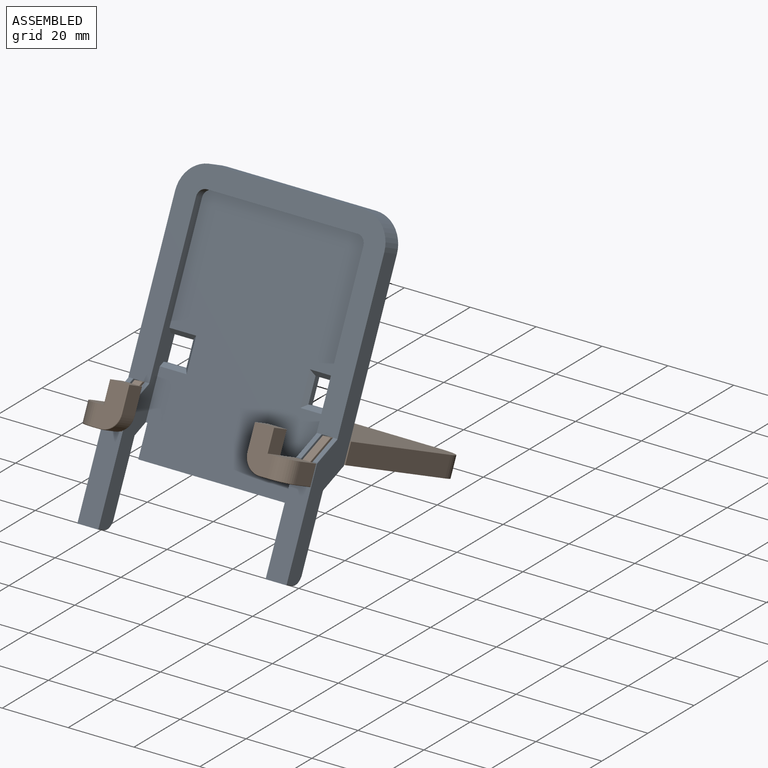
[diagram: assembled view]
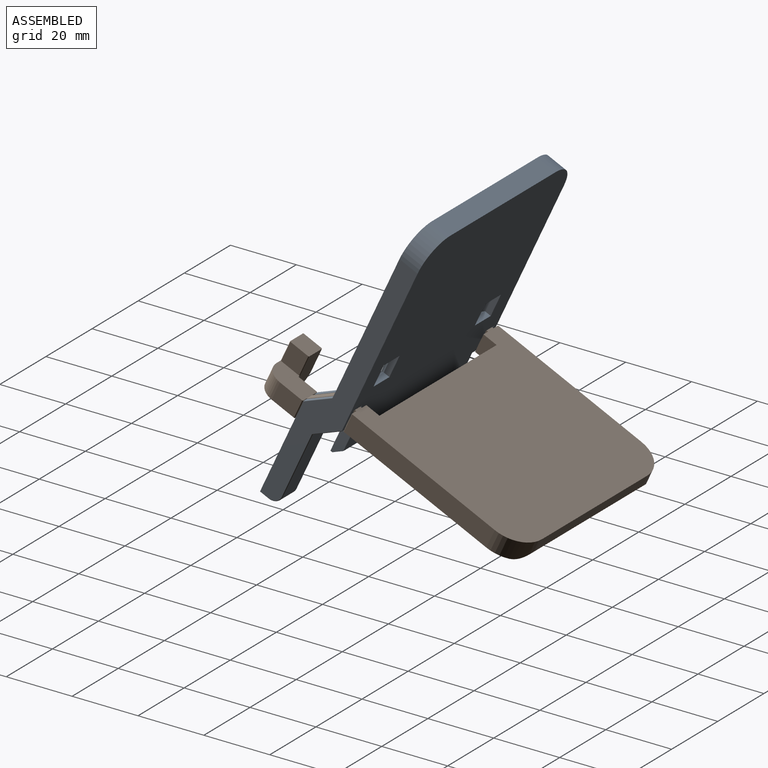
[diagram: assembled view, second angle]
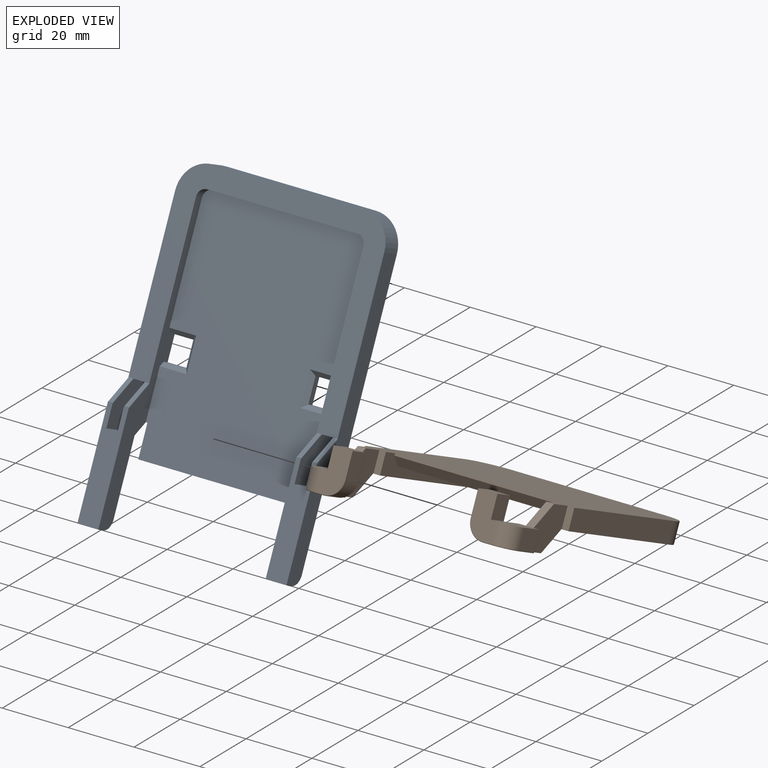
[diagram: exploded view]
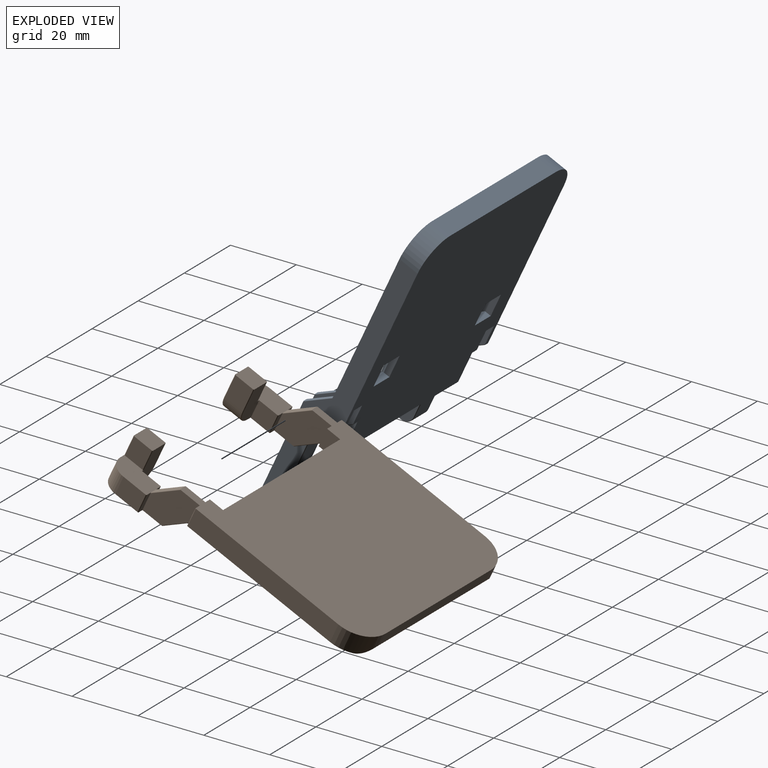
[diagram: exploded view, second angle]
ASSEMBLY  parts=2 mates=2
PART A: 79 faces, bbox 63.5x95.2x13 mm
  f0: plane 73.53x63.5mm, normal (0,0,-1), area 4351mm2, adj f6,f8,f12,f16,f17,f21,f22,f23
  f1: plane 69.72x50.8mm, normal (0,0,1), area 3368.6mm2, adj f2,f3,f4,f8,f12,f23,f24,f25
  f2: plane 49.78x0.64mm, normal (0,-1,0), area 31.6mm2, adj f1,f64,f65,f66
  f3: cylinder r=2.54mm len=2.88mm, axis (0,0,-1), area 11.5mm2, adj f1,f13,f23,f25
  f4: cylinder r=2.54mm len=2.88mm, axis (0,0,1), area 11.5mm2, adj f1,f13,f24,f25
  f5: plane 31.46x6.35mm, normal (0,0,1), area 176.9mm2, adj f7,f14,f19,f22,f23,f31,f32,f33
  f6: plane 6.66x6.66mm, normal (0,-0.71,-0.71), area 10mm2, adj f0,f15,f44,f50
  f7: plane 6.65x6.65mm, normal (0,0.71,0.71), area 10mm2, adj f5,f13,f52,f60
  f8: plane 6.86x6.86mm, normal (0,-0.71,-0.71), area 14.2mm2, adj f0,f1,f20,f24,f38,f54,f66
  f9: plane 6.65x6.65mm, normal (0,0.71,0.71), area 10mm2, adj f10,f13,f56,f59
  f10: plane 31.46x6.35mm, normal (0,0,1), area 176.9mm2, adj f9,f11,f18,f21,f24,f26,f27,f29
  f11: plane 5.95x2.87mm, normal (0,-1,0), area 17.1mm2, adj f10,f35,f36,f46
  f12: plane 6.86x6.86mm, normal (0,-0.71,-0.71), area 14.2mm2, adj f0,f1,f15,f23,f41,f51,f65
  f13: plane 63.5x57.13mm, normal (0,0,1), area 1013.4mm2, adj f3,f4,f7,f9,f14,f17,f18,f21
  f14: plane 6.65x6.65mm, normal (0,0.71,0.71), area 10mm2, adj f5,f13,f53,f58
  f15: plane 21.63x5.95mm, normal (0,0,-1), area 128.7mm2, adj f6,f12,f31,f34,f41,f45
  f16: plane 6.66x6.66mm, normal (0,-0.71,-0.71), area 10mm2, adj f0,f20,f48,f55
  f17: plane 45.72x6.06mm, normal (0,1,0), area 276.8mm2, adj f0,f13,f62,f63
  f18: plane 6.65x6.65mm, normal (0,0.71,0.71), area 10mm2, adj f10,f13,f57,f61
  f19: plane 5.95x2.87mm, normal (0,-1,0), area 17.1mm2, adj f5,f34,f39,f42
  f20: plane 21.63x5.95mm, normal (0,0,-1), area 128.7mm2, adj f8,f16,f29,f35,f38,f49
  f21: plane 85.86x12.7mm, normal (1,0,0), area 553.1mm2, adj f0,f10,f13,f46,f47,f48,f49,f61
  f22: plane 85.86x12.7mm, normal (-1,0,0), area 553.1mm2, adj f0,f5,f13,f42,f43,f44,f45,f60
  f23: plane 85.86x12.7mm, normal (1,0,0), area 401.7mm2, adj f0,f1,f3,f5,f12,f13,f39,f40
  f24: plane 85.86x12.7mm, normal (-1,0,0), area 401.7mm2, adj f0,f1,f4,f8,f10,f13,f36,f37
  f25: plane 45.72x2.88mm, normal (0,-1,0), area 131.7mm2, adj f1,f3,f4,f13
  f26: plane 13.3x12.7mm, normal (1,0,0), area 120.8mm2, adj f0,f10,f28,f29,f54,f56
  f27: plane 13.3x12.7mm, normal (-1,0,0), area 120.8mm2, adj f0,f10,f28,f29,f55,f57
  f28: plane 6.06x3.83mm, normal (0,-1,0), area 20.8mm2, adj f0,f13,f26,f27,f56,f57
  f29: plane 6.05x3.83mm, normal (0,1,0), area 20.8mm2, adj f10,f20,f26,f27,f54,f55
  f30: plane 6.06x3.83mm, normal (0,-1,0), area 20.8mm2, adj f0,f13,f32,f33,f52,f53
  f31: plane 6.05x3.83mm, normal (0,1,0), area 20.8mm2, adj f5,f15,f32,f33,f50,f51
  f32: plane 13.3x12.7mm, normal (1,0,0), area 120.8mm2, adj f0,f5,f30,f31,f50,f52
  f33: plane 13.3x12.7mm, normal (-1,0,0), area 120.8mm2, adj f0,f5,f30,f31,f51,f53
  f34: cylinder r=3.17mm len=5.95mm, axis (-1,0,0), area 29.7mm2, adj f15,f19,f40,f43
  f35: cylinder r=3.17mm len=5.95mm, axis (-1,0,0), area 29.7mm2, adj f11,f20,f37,f47
  f36: cylinder r=0.2mm len=2.87mm, axis (0,0,1), area 0.9mm2, adj f10,f11,f24,f37
  f37: torus R=2.98mm, axis (1,0,0), area 1.5mm2, adj f24,f35,f36,f38
  f38: cylinder r=0.2mm len=21.63mm, axis (0,1,0), area 6.8mm2, adj f8,f20,f24,f37
  f39: cylinder r=0.2mm len=2.87mm, axis (0,0,-1), area 0.9mm2, adj f5,f19,f23,f40
  f40: torus R=2.98mm, axis (1,0,0), area 1.5mm2, adj f23,f34,f39,f41
  f41: cylinder r=0.2mm len=21.63mm, axis (0,-1,0), area 6.8mm2, adj f12,f15,f23,f40
  f42: cylinder r=0.2mm len=2.87mm, axis (0,0,-1), area 0.9mm2, adj f5,f19,f22,f43
  f43: torus R=2.98mm, axis (1,0,0), area 1.5mm2, adj f22,f34,f42,f45
  f44: cylinder r=0.2mm len=7mm, axis (0,0.71,-0.71), area 3mm2, adj f0,f6,f22,f45
  f45: cylinder r=0.2mm len=21.71mm, axis (0,1,0), area 6.8mm2, adj f15,f22,f43,f44
  f46: cylinder r=0.2mm len=2.87mm, axis (0,0,1), area 0.9mm2, adj f10,f11,f21,f47
  f47: torus R=2.98mm, axis (1,0,0), area 1.5mm2, adj f21,f35,f46,f49
  f48: cylinder r=0.2mm len=7mm, axis (0,-0.71,0.71), area 3mm2, adj f0,f16,f21,f49
  f49: cylinder r=0.2mm len=21.71mm, axis (0,-1,0), area 6.8mm2, adj f20,f21,f47,f48
  f50: cylinder r=0.2mm len=7.08mm, axis (0,-0.71,0.71), area 3mm2, adj f0,f6,f31,f32
  f51: cylinder r=0.2mm len=7.08mm, axis (0,0.71,-0.71), area 3mm2, adj f0,f12,f31,f33
  f52: cylinder r=0.2mm len=7.07mm, axis (0,0.71,-0.71), area 3mm2, adj f5,f7,f30,f32
  f53: cylinder r=0.2mm len=7.07mm, axis (0,-0.71,0.71), area 3mm2, adj f5,f14,f30,f33
  f54: cylinder r=0.2mm len=7.08mm, axis (0,-0.71,0.71), area 3mm2, adj f0,f8,f26,f29
  f55: cylinder r=0.2mm len=7.08mm, axis (0,0.71,-0.71), area 3mm2, adj f0,f16,f27,f29
  f56: cylinder r=0.2mm len=7.07mm, axis (0,0.71,-0.71), area 3mm2, adj f9,f10,f26,f28
  f57: cylinder r=0.2mm len=7.07mm, axis (0,-0.71,0.71), area 3mm2, adj f10,f18,f27,f28
  f58: cylinder r=0.2mm len=6.93mm, axis (0,0.71,-0.71), area 3mm2, adj f5,f13,f14,f23
  f59: cylinder r=0.2mm len=6.93mm, axis (0,-0.71,0.71), area 3mm2, adj f9,f10,f13,f24
  f60: cylinder r=0.2mm len=6.93mm, axis (0,-0.71,0.71), area 3mm2, adj f5,f7,f13,f22
  f61: cylinder r=0.2mm len=6.93mm, axis (0,0.71,-0.71), area 3mm2, adj f10,f13,f18,f21
  f62: cylinder r=8.89mm len=8.89mm, axis (0,0,1), area 84.6mm2, adj f0,f13,f17,f22
  f63: cylinder r=8.89mm len=8.89mm, axis (0,0,-1), area 84.6mm2, adj f0,f13,f17,f21
  f64: plane 49.78x2.54mm, normal (0,-0.71,-0.71), area 178.8mm2, adj f0,f2,f65,f66
  f65: plane 12.58x3.18mm, normal (-1,0,0), area 31.7mm2, adj f0,f1,f2,f12,f64
  f66: plane 12.58x3.18mm, normal (1,0,0), area 31.7mm2, adj f0,f1,f2,f8,f64
  f67: plane 6.86x1.91mm, normal (0,1,0), area 13.1mm2, adj f0,f24,f69,f73
  f68: plane 6.86x1.91mm, normal (0,-1,0), area 13.1mm2, adj f0,f24,f69,f75
  f69: plane 7.37x1.91mm, normal (1,0,0), area 14mm2, adj f0,f67,f68,f74
  f70: plane 6.86x1.91mm, normal (0,1,0), area 13.1mm2, adj f0,f23,f72,f76
  f71: plane 6.86x1.91mm, normal (0,-1,0), area 13.1mm2, adj f0,f23,f72,f77
  f72: plane 7.37x1.91mm, normal (-1,0,0), area 14mm2, adj f0,f70,f71,f78
  f73: plane 8.13x1.27mm, normal (0,0.71,0.71), area 13.5mm2, adj f1,f24,f67,f74
  f74: plane 9.91x1.27mm, normal (0.71,0,0.71), area 15.5mm2, adj f1,f69,f73,f75
  f75: plane 8.13x1.27mm, normal (0,-0.71,0.71), area 13.5mm2, adj f1,f24,f68,f74
  f76: plane 8.13x1.27mm, normal (0,0.71,0.71), area 13.5mm2, adj f1,f23,f70,f78
  f77: plane 8.13x1.27mm, normal (0,-0.71,0.71), area 13.5mm2, adj f1,f23,f71,f78
  f78: plane 9.91x1.27mm, normal (-0.71,0,0.71), area 15.5mm2, adj f1,f72,f76,f77
PART B: 88 faces, bbox 64.4x83.3x13.3 mm
  f0: plane 47.96x6.05mm, normal (-1,0,0), area 154.8mm2, adj f3,f4,f13,f38,f85,f86,f87
  f1: plane 47.96x6.05mm, normal (1,0,0), area 154.8mm2, adj f2,f4,f13,f34,f85,f86,f87
  f2: cylinder r=2.54mm len=2.87mm, axis (0,0,-1), area 11.5mm2, adj f1,f4,f29,f85
  f3: cylinder r=2.54mm len=2.87mm, axis (0,0,1), area 11.5mm2, adj f0,f4,f29,f85
  f4: plane 63.5x53.82mm, normal (0,0,1), area 847.2mm2, adj f0,f1,f2,f3,f6,f7,f12,f17
  f5: plane 45.72x3.02mm, normal (0,-1,0), area 138.2mm2, adj f6,f7,f13,f84
  f6: cylinder r=8.89mm len=8.89mm, axis (0,0,-1), area 75.7mm2, adj f4,f5,f13,f24,f84
  f7: cylinder r=8.89mm len=8.89mm, axis (0,0,1), area 75.7mm2, adj f4,f5,f13,f23,f84
  f8: plane 12.5x6.15mm, normal (0,-1,0), area 67.1mm2, adj f21,f25,f30,f62,f63,f64,f82
  f9: plane 12.5x7.42mm, normal (0,1,0), area 74.5mm2, adj f21,f25,f49,f56,f57,f58,f83
  f10: plane 6.35x5.84mm, normal (0,0,-1), area 37.1mm2, adj f20,f22,f27,f33,f50,f65,f80,f81
  f11: plane 19.23x7.5mm, normal (0,0,1), area 95.3mm2, adj f12,f31,f35,f36,f43,f44,f47,f52
  f12: plane 6.66x6.66mm, normal (0,-0.71,0.71), area 18.9mm2, adj f4,f11,f68,f69
  f13: plane 63.58x63.58mm, normal (0,0,-1), area 3384.6mm2, adj f0,f1,f5,f6,f7,f14,f18,f23
  f14: plane 6.65x6.65mm, normal (0,0.71,-0.71), area 18.9mm2, adj f13,f19,f70,f71
  f15: plane 7.42x5.86mm, normal (1,0,0), area 43.4mm2, adj f25,f49,f59,f61
  f16: plane 7.42x5.86mm, normal (-1,0,0), area 43.4mm2, adj f19,f48,f53,f55
  f17: plane 6.66x6.66mm, normal (0,-0.71,0.71), area 18.9mm2, adj f4,f26,f73,f75
  f18: plane 6.65x6.65mm, normal (0,0.71,-0.71), area 18.9mm2, adj f13,f25,f72,f74
  f19: plane 12.7x7.06mm, normal (0,0,-1), area 78.3mm2, adj f14,f16,f20,f22,f27,f31,f35,f44
  f20: plane 12.5x6.15mm, normal (0,-1,0), area 67.1mm2, adj f10,f19,f31,f65,f66,f67,f80
  f21: plane 6.35x5.84mm, normal (0,0,-1), area 37.1mm2, adj f8,f9,f28,f32,f56,f62,f82,f83
  f22: plane 12.5x7.42mm, normal (0,1,0), area 74.5mm2, adj f10,f19,f48,f50,f51,f52,f81
  f23: plane 47.76x6.05mm, normal (1,0,0), area 288.7mm2, adj f4,f7,f13,f79
  f24: plane 47.76x6.05mm, normal (-1,0,0), area 288.7mm2, adj f4,f6,f13,f78
  f25: plane 12.7x7.06mm, normal (0,0,-1), area 78.3mm2, adj f8,f9,f15,f18,f28,f30,f39,f42
  f26: plane 19.23x7.5mm, normal (0,0,1), area 95.3mm2, adj f17,f30,f37,f39,f41,f42,f46,f58
  f27: plane 6.65x5.95mm, normal (-1,0,0), area 39.5mm2, adj f10,f19,f80,f81
  f28: plane 6.65x5.95mm, normal (1,0,0), area 39.5mm2, adj f21,f25,f82,f83
  f29: plane 45.72x2.87mm, normal (0,1,0), area 131.2mm2, adj f2,f3,f4,f85
  f30: plane 6.35x6.06mm, normal (-1,0,0), area 37.2mm2, adj f8,f25,f26,f64,f76
  f31: plane 6.35x6.06mm, normal (1,0,0), area 37.2mm2, adj f11,f19,f20,f67,f77
  f32: plane 7.62x5.95mm, normal (-1,0,0), area 45.3mm2, adj f21,f46,f56,f62
  f33: plane 7.62x5.95mm, normal (1,0,0), area 45.3mm2, adj f10,f47,f50,f65
  f34: plane 6.13x2.25mm, normal (0,1,0), area 11.9mm2, adj f1,f4,f13,f36,f69
  f35: plane 6.14x2.05mm, normal (0,-1,0), area 10.7mm2, adj f11,f19,f36,f71,f77
  f36: plane 13.3x12.7mm, normal (1,0,0), area 120.8mm2, adj f11,f13,f34,f35,f69,f71
  f37: plane 13.3x12.7mm, normal (-1,0,0), area 120.8mm2, adj f13,f26,f38,f39,f74,f75
  f38: plane 6.13x2.25mm, normal (0,1,0), area 11.9mm2, adj f0,f4,f13,f37,f75
  f39: plane 6.14x2.05mm, normal (0,-1,0), area 10.7mm2, adj f25,f26,f37,f74,f76
  f40: plane 6.13x2.05mm, normal (0,1,0), area 10.7mm2, adj f4,f13,f41,f73,f79
  f41: plane 13.3x12.7mm, normal (1,0,0), area 120.8mm2, adj f13,f26,f40,f42,f72,f73
  f42: plane 6.14x2.05mm, normal (0,-1,0), area 10.7mm2, adj f25,f26,f41,f59,f72
  f43: plane 13.3x12.7mm, normal (-1,0,0), area 120.8mm2, adj f11,f13,f44,f45,f68,f70
  f44: plane 6.14x2.05mm, normal (0,-1,0), area 10.7mm2, adj f11,f19,f43,f53,f70
  f45: plane 6.13x2.05mm, normal (0,1,0), area 10.7mm2, adj f4,f13,f43,f68,f78
  f46: cylinder r=5.08mm len=5.95mm, axis (0,-1,0), area 47.5mm2, adj f26,f32,f57,f63
  f47: cylinder r=5.08mm len=5.95mm, axis (0,1,0), area 47.5mm2, adj f11,f33,f51,f66
  f48: cylinder r=5.08mm len=5.86mm, axis (0,0,1), area 46.7mm2, adj f16,f19,f22,f54
  f49: cylinder r=5.08mm len=5.86mm, axis (0,0,-1), area 46.7mm2, adj f9,f15,f25,f60
  f50: cylinder r=0.2mm len=7.62mm, axis (0,0,-1), area 2.4mm2, adj f10,f22,f33,f51
  f51: torus R=4.88mm, axis (0,1,0), area 2.5mm2, adj f22,f47,f50,f52
  f52: cylinder r=0.2mm len=2.54mm, axis (-1,0,0), area 0.8mm2, adj f11,f22,f51,f54
  f53: cylinder r=0.2mm len=6.06mm, axis (0,0,-1), area 1.9mm2, adj f16,f19,f44,f55
  f54: torus R=4.88mm, axis (0,0,1), area 2.5mm2, adj f11,f48,f52,f55
  f55: cylinder r=0.2mm len=7.62mm, axis (0,-1,0), area 2.4mm2, adj f11,f16,f53,f54
  f56: cylinder r=0.2mm len=7.62mm, axis (0,0,1), area 2.4mm2, adj f9,f21,f32,f57
  f57: torus R=4.88mm, axis (0,1,0), area 2.5mm2, adj f9,f46,f56,f58
  f58: cylinder r=0.2mm len=2.54mm, axis (-1,0,0), area 0.8mm2, adj f9,f26,f57,f60
  f59: cylinder r=0.2mm len=6.06mm, axis (0,0,-1), area 1.9mm2, adj f15,f25,f42,f61
  f60: torus R=4.88mm, axis (0,0,1), area 2.5mm2, adj f26,f49,f58,f61
  f61: cylinder r=0.2mm len=7.62mm, axis (0,1,0), area 2.4mm2, adj f15,f26,f59,f60
  f62: cylinder r=0.2mm len=7.62mm, axis (0,0,1), area 2.4mm2, adj f8,f21,f32,f63
  f63: torus R=4.88mm, axis (0,1,0), area 2.5mm2, adj f8,f46,f62,f64
  f64: cylinder r=0.2mm len=1.27mm, axis (1,0,0), area 0.4mm2, adj f8,f26,f30,f63
  f65: cylinder r=0.2mm len=7.62mm, axis (0,0,-1), area 2.4mm2, adj f10,f20,f33,f66
  f66: torus R=4.88mm, axis (0,1,0), area 2.5mm2, adj f20,f47,f65,f67
  f67: cylinder r=0.2mm len=1.27mm, axis (1,0,0), area 0.4mm2, adj f11,f20,f31,f66
  f68: cylinder r=0.2mm len=7.08mm, axis (0,-0.71,-0.71), area 3mm2, adj f11,f12,f43,f45
  f69: cylinder r=0.2mm len=7.08mm, axis (0,0.71,0.71), area 3mm2, adj f11,f12,f34,f36
  f70: cylinder r=0.2mm len=7.07mm, axis (0,0.71,0.71), area 3mm2, adj f13,f14,f43,f44
  f71: cylinder r=0.2mm len=7.07mm, axis (0,-0.71,-0.71), area 3mm2, adj f13,f14,f35,f36
  f72: cylinder r=0.2mm len=7.07mm, axis (0,-0.71,-0.71), area 3mm2, adj f13,f18,f41,f42
  f73: cylinder r=0.2mm len=7.08mm, axis (0,0.71,0.71), area 3mm2, adj f17,f26,f40,f41
  f74: cylinder r=0.2mm len=7.07mm, axis (0,0.71,0.71), area 3mm2, adj f13,f18,f37,f39
  f75: cylinder r=0.2mm len=7.08mm, axis (0,-0.71,-0.71), area 3mm2, adj f17,f26,f37,f38
  f76: cylinder r=0.2mm len=6.06mm, axis (0,0,1), area 1.9mm2, adj f25,f26,f30,f39
  f77: cylinder r=0.2mm len=6.05mm, axis (0,0,-1), area 1.9mm2, adj f11,f19,f31,f35
  f78: cylinder r=0.2mm len=6.05mm, axis (0,0,1), area 1.9mm2, adj f4,f13,f24,f45
  f79: cylinder r=0.2mm len=6.05mm, axis (0,0,1), area 1.9mm2, adj f4,f13,f23,f40
  f80: cylinder r=0.2mm len=6.65mm, axis (0,0,1), area 2.1mm2, adj f10,f19,f20,f27
  f81: cylinder r=0.2mm len=6.65mm, axis (0,0,1), area 2.1mm2, adj f10,f19,f22,f27
  f82: cylinder r=0.2mm len=6.65mm, axis (0,0,-1), area 2.1mm2, adj f8,f21,f25,f28
  f83: cylinder r=0.2mm len=6.65mm, axis (0,0,-1), area 2.1mm2, adj f9,f21,f25,f28
  f84: cylinder r=3.02mm len=59.08mm, axis (-1,0,0), area 252.1mm2, adj f4,f5,f6,f7
  f85: plane 50.8x43.56mm, normal (0,0,1), area 2210.1mm2, adj f0,f1,f2,f3,f29,f87
  f86: plane 50.8x0.64mm, normal (0,1,0), area 32.3mm2, adj f0,f1,f13,f87
  f87: plane 50.8x2.54mm, normal (0,0.71,0.71), area 182.5mm2, adj f0,f1,f85,f86
PLACE A rot(axis=(1,0,0),65deg) t=(-42.71,-24.34,46.61)mm
PLACE B rot(axis=(1,0,0),155deg) t=(-42.71,-21.15,38.22)mm fixed
MATE planar B.f15 <-> A.f21  axis (1,0,0) through (20.79,-38.23,42.3)mm
MATE planar A.f9 <-> B.f18  axis (0,-0.34,0.94) through (15.17,-28.76,45.01)mm
